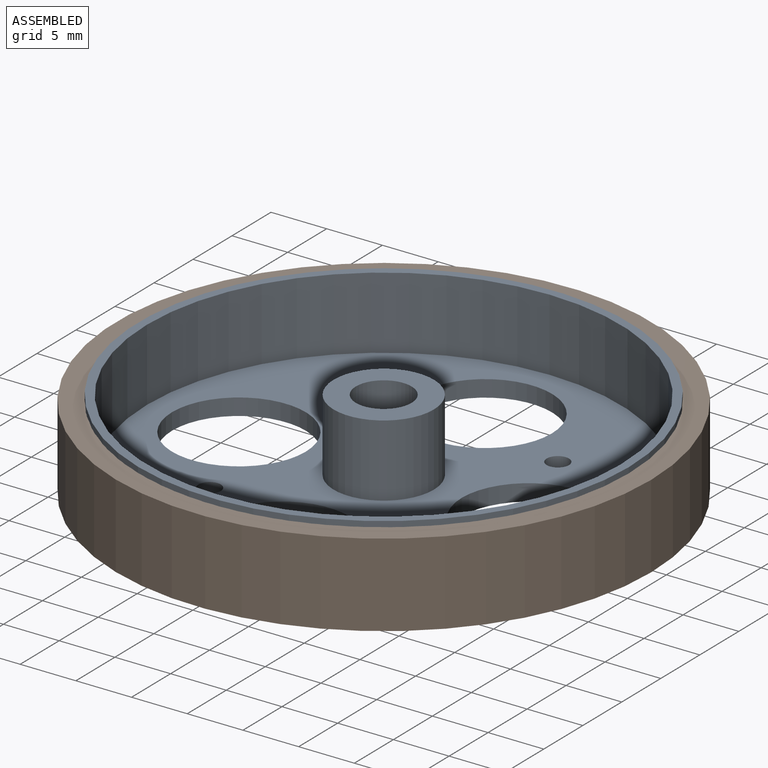
[diagram: assembled view]
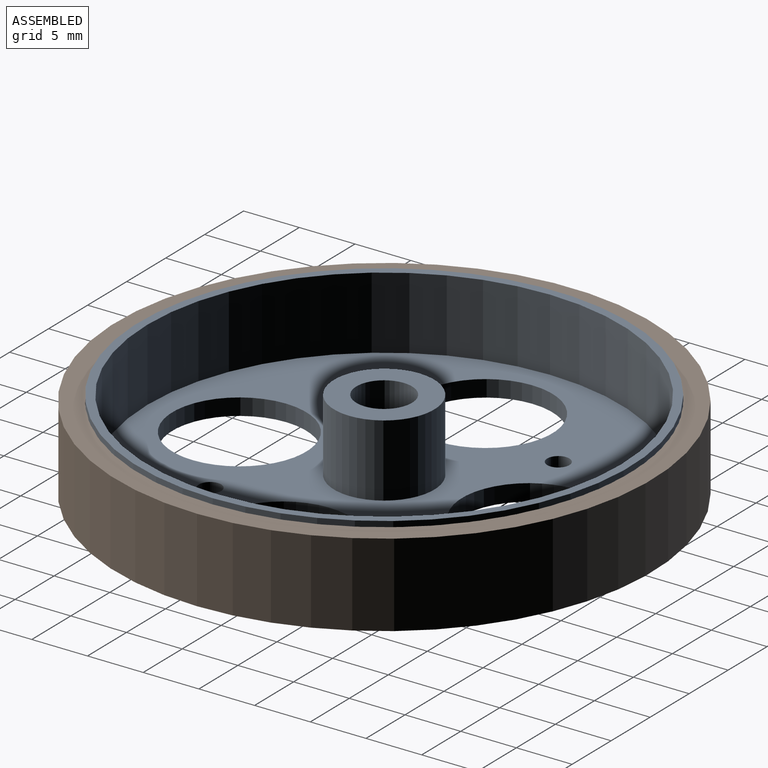
[diagram: assembled view, second angle]
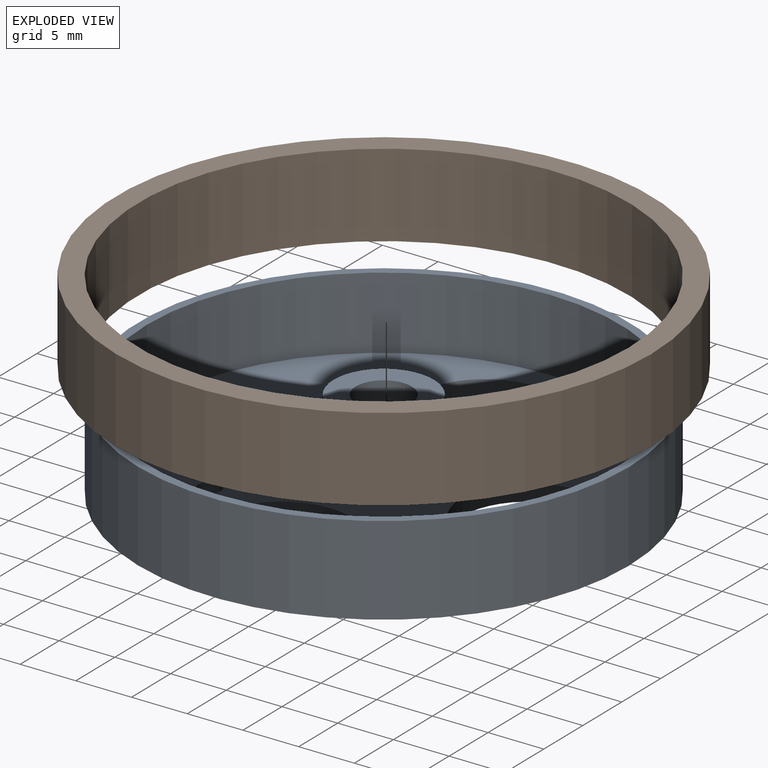
[diagram: exploded view]
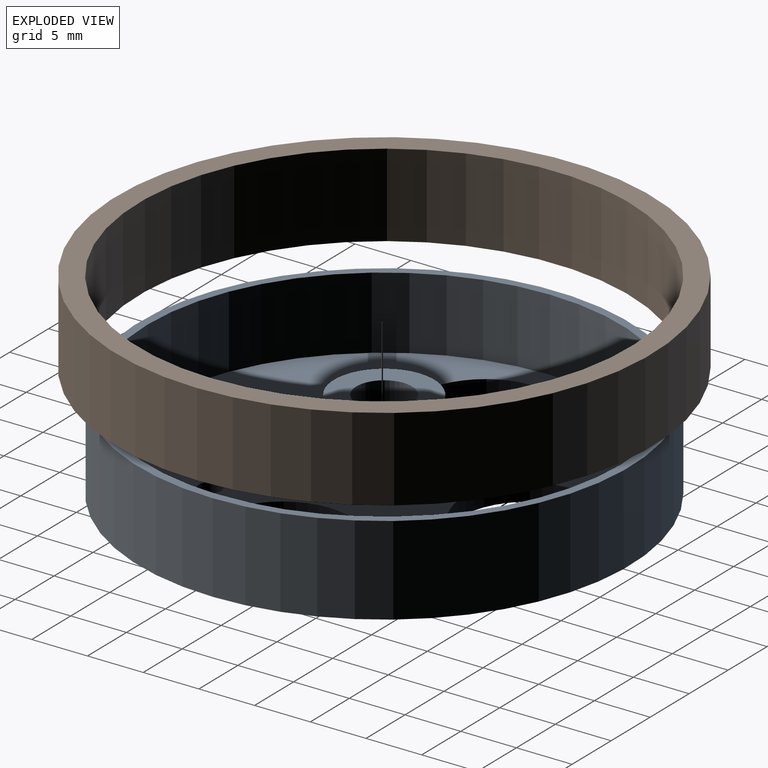
[diagram: exploded view, second angle]
ASSEMBLY  parts=2 mates=2
PART A: 16 faces, bbox 44x44x8 mm
  f0: cylinder r=22mm len=44mm, axis (0,0,1), area 1105.8mm2, adj f1,f2
  f1: plane 44x44mm, normal (0,0,1), area 101.9mm2, adj f0,f4
  f2: plane 44x44mm, normal (0,0,-1), area 1035.9mm2, adj f0,f7,f8,f9,f10,f11,f12,f13
  f3: cylinder r=4.5mm len=9mm, axis (0,0,1), area 183.8mm2, adj f5,f6
  f4: cylinder r=21.25mm len=42.5mm, axis (0,0,1), area 867.9mm2, adj f1,f5
  f5: plane 42.5x42.5mm, normal (0,0,1), area 890.1mm2, adj f3,f4,f8,f9,f10,f11,f12,f13
  f6: plane 9x9mm, normal (0,0,1), area 44mm2, adj f3,f7
  f7: cylinder r=2.5mm len=8mm, axis (0,0,1), area 125.7mm2, adj f2,f6
  f8: cylinder r=6mm len=12mm, axis (0,0,-1), area 56.5mm2, adj f2,f5
  f9: cylinder r=6mm len=12mm, axis (0,0,-1), area 56.5mm2, adj f2,f5
  f10: cylinder r=6mm len=12mm, axis (0,0,-1), area 56.5mm2, adj f2,f5
  f11: cylinder r=6mm len=12mm, axis (0,0,-1), area 56.5mm2, adj f2,f5
  f12: cylinder r=1mm len=2mm, axis (0,0,-1), area 9.4mm2, adj f2,f5
  f13: cylinder r=1mm len=2mm, axis (0,0,-1), area 9.4mm2, adj f2,f5
  f14: cylinder r=1mm len=2mm, axis (0,0,-1), area 9.4mm2, adj f2,f5
  f15: cylinder r=1mm len=2mm, axis (0,0,-1), area 9.4mm2, adj f2,f5
PART B: 4 faces, bbox 48x48x7.5 mm
  f0: cylinder r=22mm len=44mm, axis (0,0,-1), area 1036.7mm2, adj f2,f3
  f1: cylinder r=24mm len=48mm, axis (0,0,-1), area 1131mm2, adj f2,f3
  f2: plane 48x48mm, normal (0,0,1), area 289mm2, adj f0,f1
  f3: plane 48x48mm, normal (0,0,-1), area 289mm2, adj f0,f1
PLACE A t=(-28.9,62.9,-24.1)mm
PLACE B t=(-96.29,40.12,-24.1)mm
MATE planar A.f0 <-> B.f0  axis (0,0,-1) through (-28.9,62.9,-24.1)mm
MATE slider A.f0 <-> B.f0  axis (0,0,-1) through (-28.9,62.9,-24.1)mm
